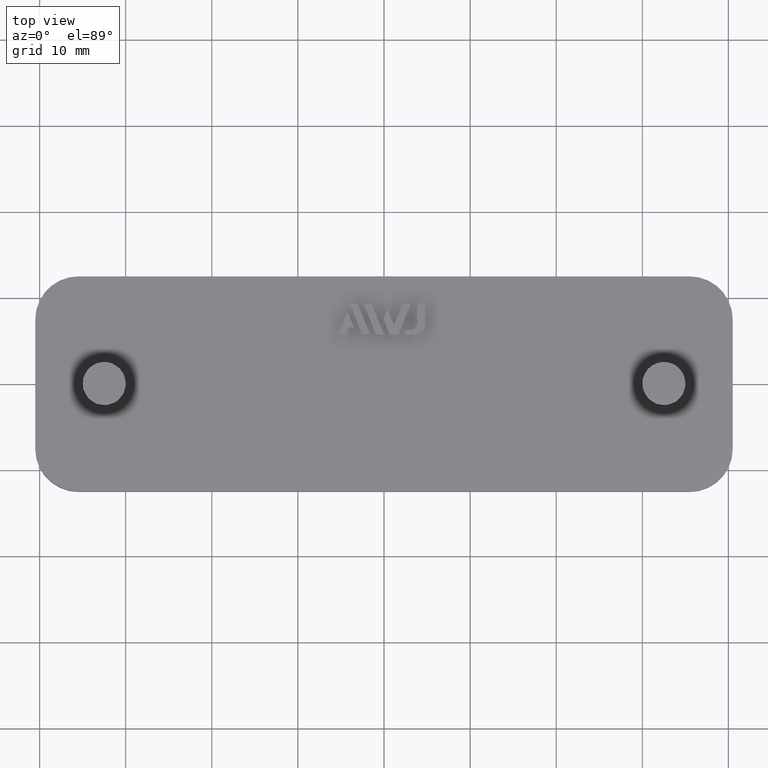
[diagram: clean part render]
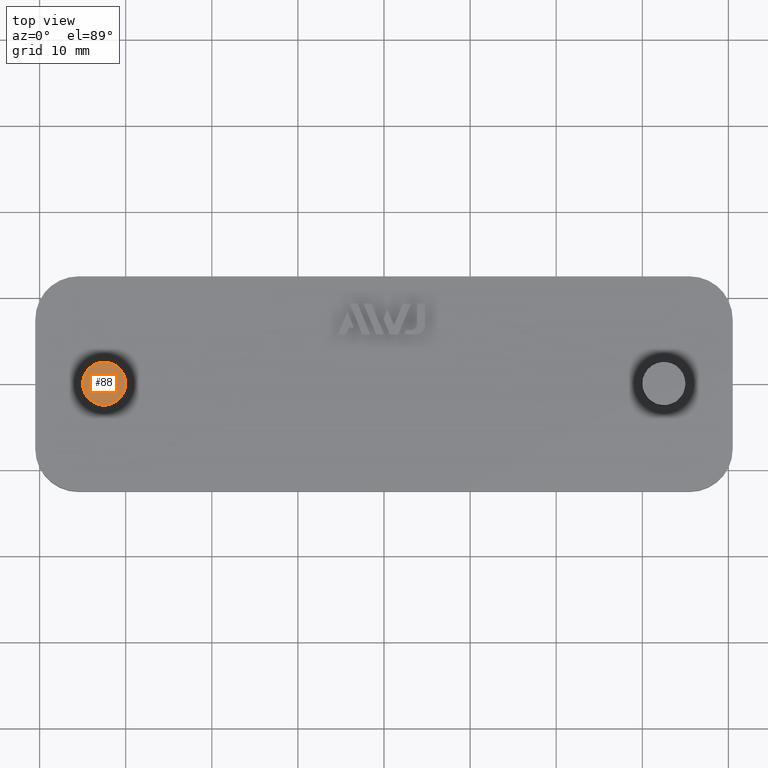
[diagram: same view with one face highlighted and labeled with its STEP entity id]
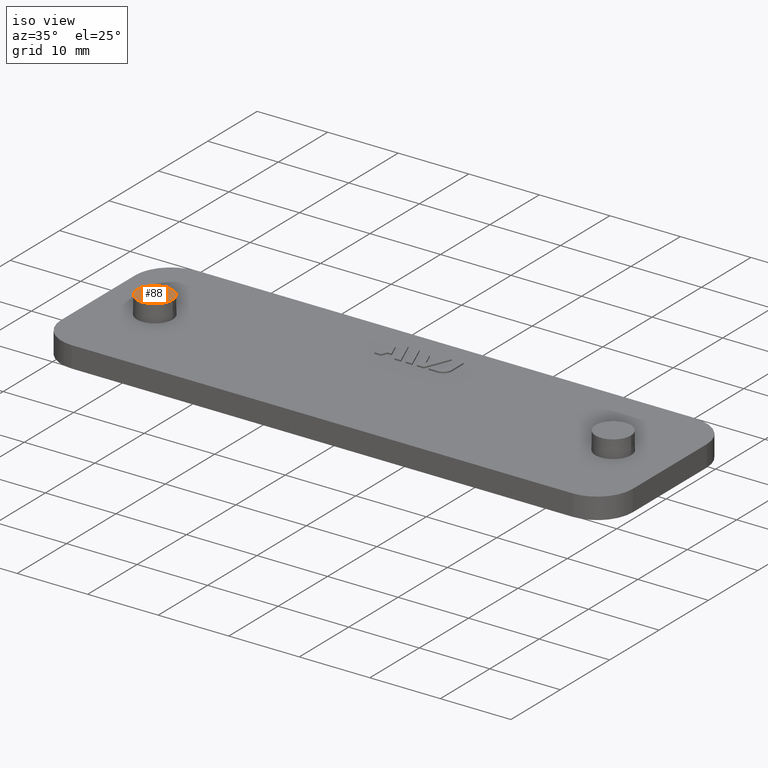
[diagram: same view with one face highlighted and labeled with its STEP entity id]
A machine part, top view. The second image highlights one B-rep face of the part: STEP entity #88.
A second angle (iso view) of the same face is appended — the face is thin or edge-on in the first view.
In plain terms, the highlighted planar face has unit normal (0, 0, 1).
Its self-contained STEP definition (entity closure, byte-faithful):
#88 = ADVANCED_FACE( '', ( #173 ), #174, .T. );
#173 = FACE_OUTER_BOUND( '', #306, .T. );
#174 = PLANE( '', #307 );
#306 = EDGE_LOOP( '', ( #542 ) );
#307 = AXIS2_PLACEMENT_3D( '', #543, #544, #545 );
#542 = ORIENTED_EDGE( '', *, *, #953, .T. );
#543 = CARTESIAN_POINT( '', ( -32.5000000000000, -2.03132053278715E-015, 5.49999999999998 ) );
#544 = DIRECTION( '', ( 0.000000000000000, 6.12303176911189E-017, 1.00000000000000 ) );
#545 = DIRECTION( '', ( 1.00000000000000, -3.06151588455594E-016, 1.87457590227767E-032 ) );
#953 = EDGE_CURVE( '', #1162, #1162, #1163, .T. );
#1162 = VERTEX_POINT( '', #1469 );
#1163 = CIRCLE( '', #1470, 2.50000000000000 );
#1469 = CARTESIAN_POINT( '', ( -30.0000000000000, -2.79669950392614E-015, 5.49999999999998 ) );
#1470 = AXIS2_PLACEMENT_3D( '', #1753, #1754, #1755 );
#1753 = CARTESIAN_POINT( '', ( -32.5000000000000, -2.03132053278715E-015, 5.49999999999998 ) );
#1754 = DIRECTION( '', ( 0.000000000000000, 6.12303176911189E-017, 1.00000000000000 ) );
#1755 = DIRECTION( '', ( 1.00000000000000, -3.06151588455595E-016, 1.87457590227768E-032 ) );